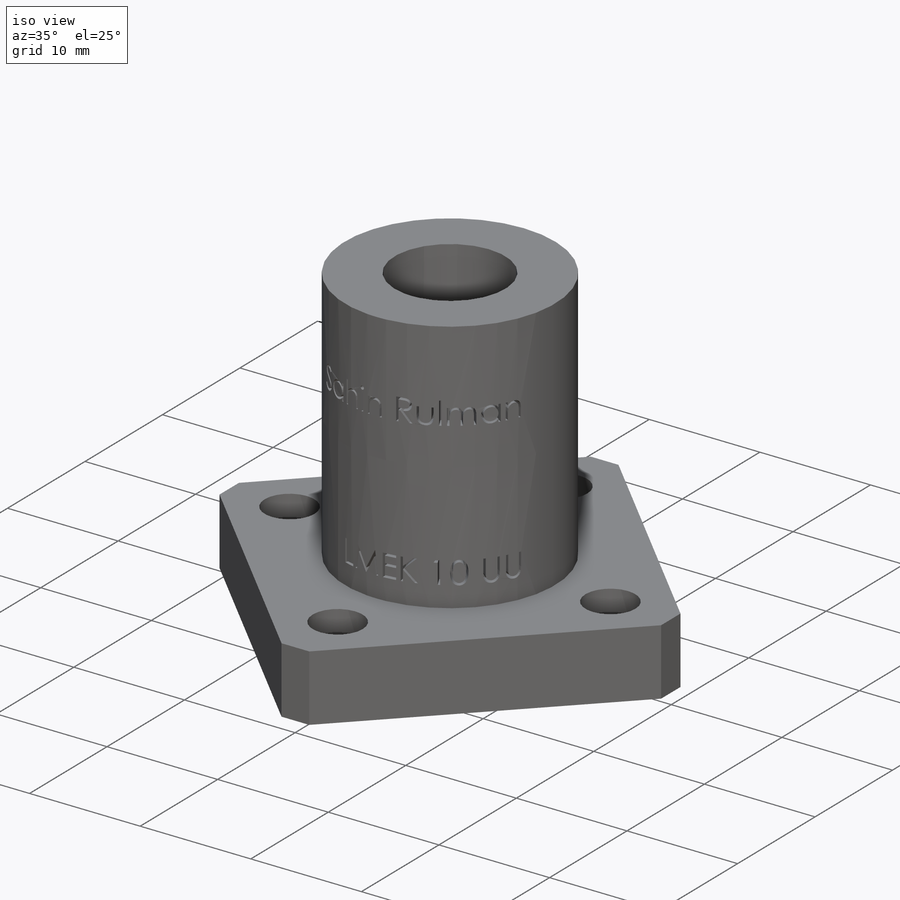
[diagram: iso view]
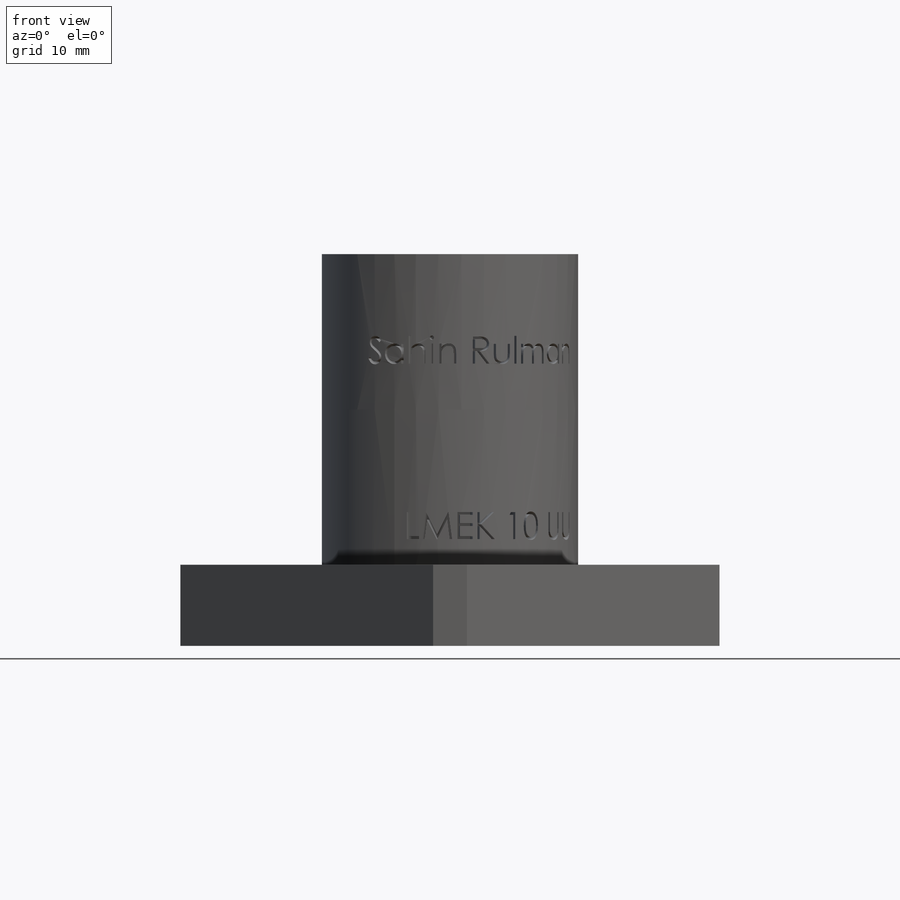
[diagram: front view]
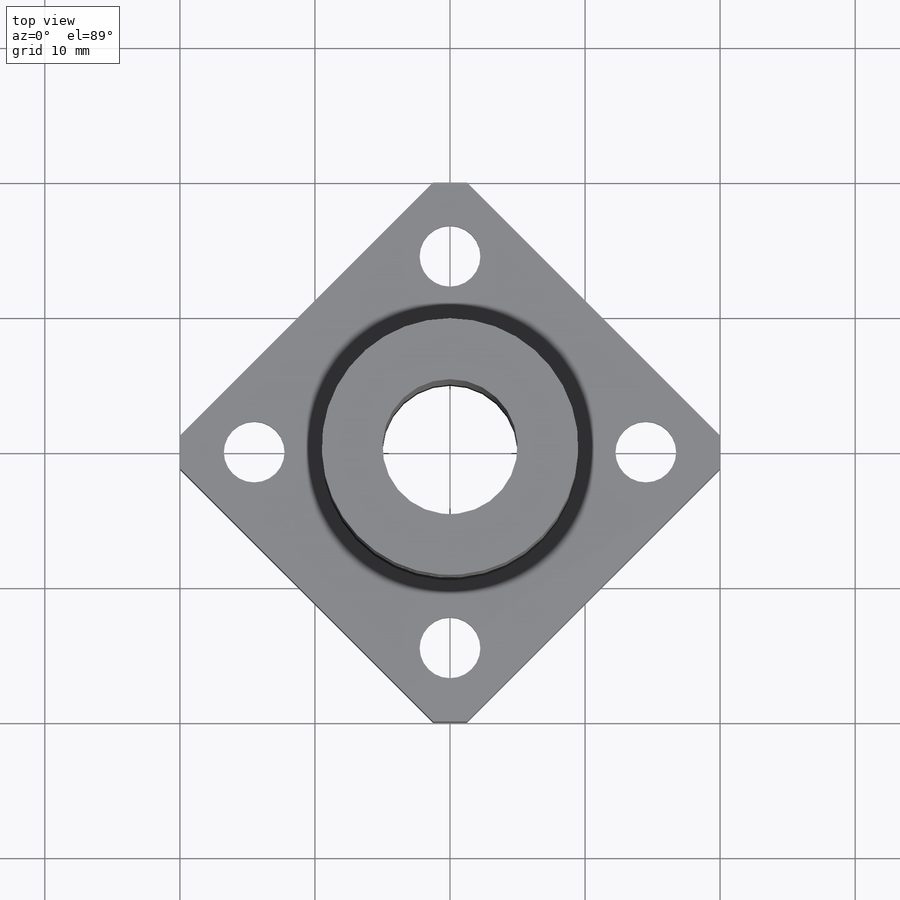
[diagram: top view]
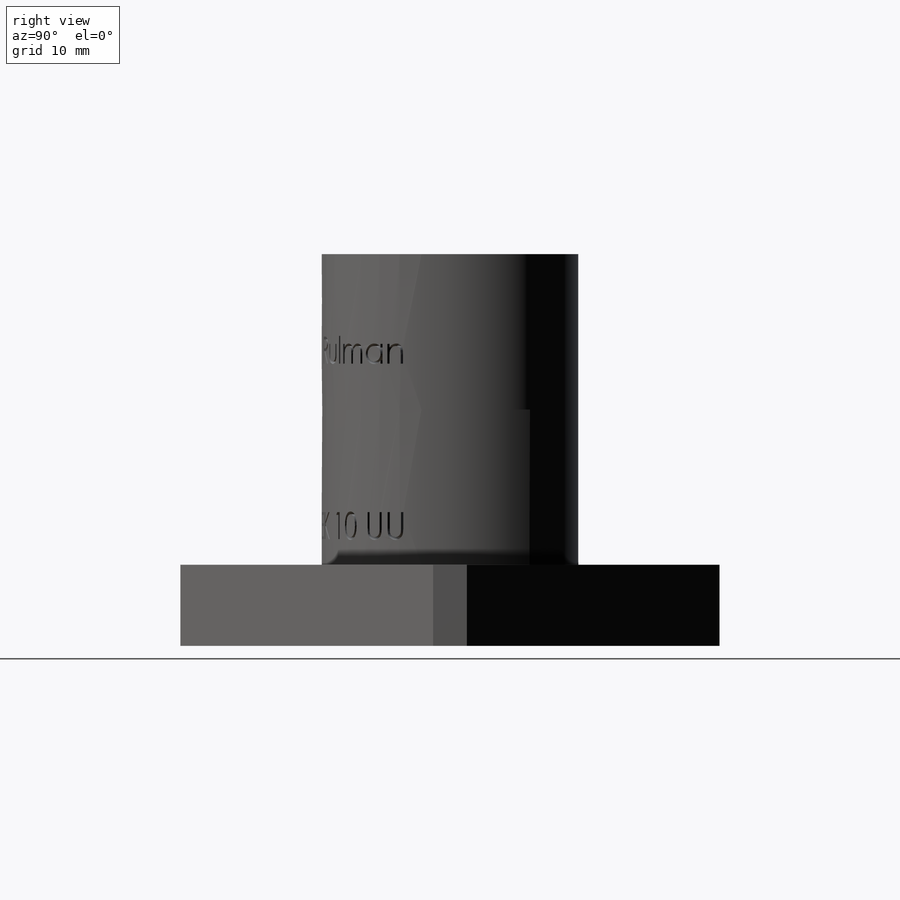
[diagram: right view]
SOLIDWORKS PART (.sldprt)
format: sldprt  version: not decoded by parser v0  size: 850,944 bytes
history: native  units: mm
features: sketch x5, extrude x2, cut_extrude x2, material x1, plane x1 (+11 scaffold rows collapsed)
feature tree (22):
  scaffold x11  (default folders/planes/origin — collapsed)
  material  "Material <not specified>"
  sketch  "Sketch1"  dims[D1=10.0mm D2=40.0mm D3=29.0mm D4=4.5mm D5=4.0]
  extrude  "Boss-Extrude1"  Depth=6mm
  sketch  "Sketch2"  dims[D1=7.5mm D2=4.0]
  cut_extrude  "Cut-Extrude1"  Depth=4.1mm
  sketch  "Sketch3"  dims[D1=19.0mm]
  extrude  "Boss-Extrude2"  Depth=23mm
  plane  "Plane1"  Offset=34.704499mm
  sketch  "Sketch4"  dims[D1=1.0mm]
  sketch  "Sketch5"  dims[D1=30.0mm]
  cut_extrude  "Cut-Extrude2"  Depth=10mm
decode coverage: 9 of 9 modeling features carry decoded parameters
note: suppression state not decoded; provenance and decode notes live in map.json
